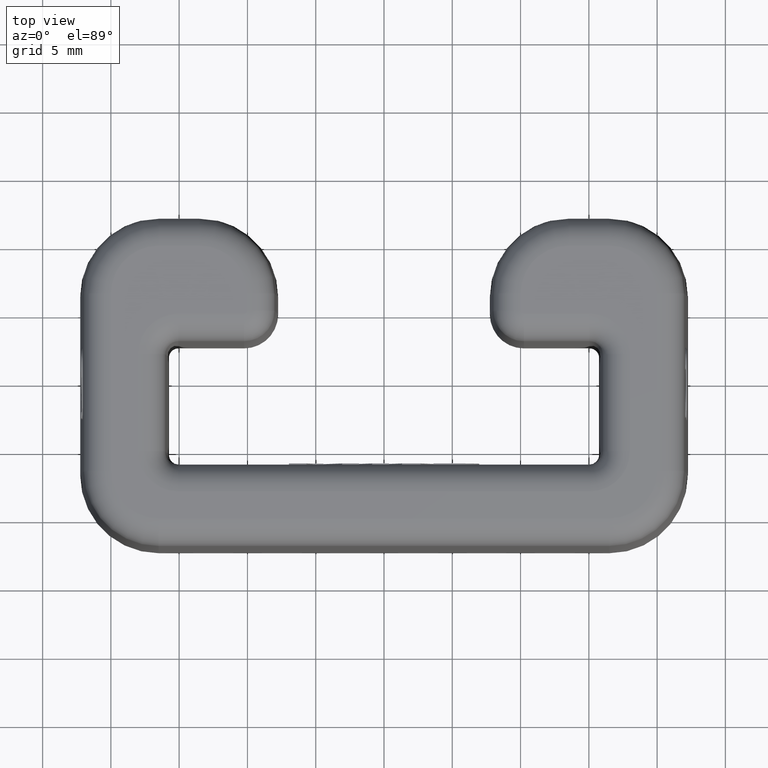
[diagram: clean part render]
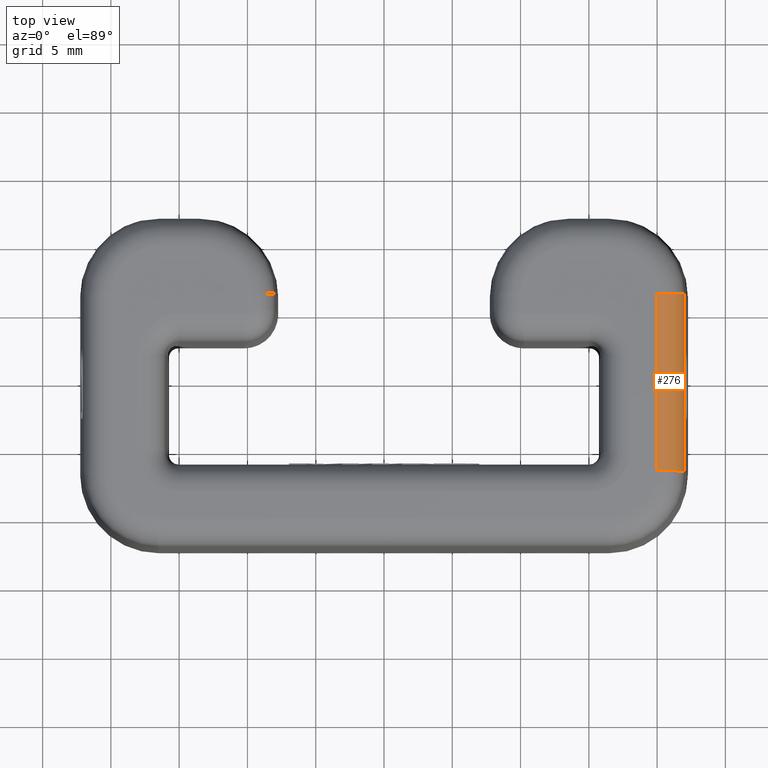
[diagram: same view with one face highlighted and labeled with its STEP entity id]
A machine part, top view. The second image highlights one B-rep face of the part: STEP entity #276.
In plain terms, the highlighted cylindrical surface (edge-blend (fillet) strip) has radius 2 mm, axis along (0, -1, 0).
Its self-contained STEP definition (entity closure, byte-faithful):
#276=ADVANCED_FACE('',(#594),#595,.T.);
#594=FACE_OUTER_BOUND('',#999,.T.);
#595=CYLINDRICAL_SURFACE('',#1000,2.0);
#999=EDGE_LOOP('',(#2306,#2307,#2308,#2309));
#1000=AXIS2_PLACEMENT_3D('',#2310,#2311,#2312);
#2306=ORIENTED_EDGE('',*,*,#3043,.T.);
#2307=ORIENTED_EDGE('',*,*,#2997,.F.);
#2308=ORIENTED_EDGE('',*,*,#3041,.F.);
#2309=ORIENTED_EDGE('',*,*,#2974,.F.);
#2310=CARTESIAN_POINT('',(19.9846054737687,4.95,15.0));
#2311=DIRECTION('',(0.0,-1.0,0.0));
#2312=DIRECTION('',(0.0,0.0,1.0));
#2974=EDGE_CURVE('',#3607,#3609,#3610,.F.);
#2997=EDGE_CURVE('',#3643,#3646,#3647,.F.);
#3041=EDGE_CURVE('',#3609,#3643,#3704,.T.);
#3043=EDGE_CURVE('',#3607,#3646,#3706,.T.);
#3607=VERTEX_POINT('',#5126);
#3609=VERTEX_POINT('',#5128);
#3610=LINE('',#5129,#5130);
#3643=VERTEX_POINT('',#5177);
#3646=VERTEX_POINT('',#5181);
#3647=LINE('',#5182,#5183);
#3704=CIRCLE('',#5261,2.0);
#3706=CIRCLE('',#5263,2.0);
#5126=CARTESIAN_POINT('',(19.9846054737686,3.5,17.0));
#5128=CARTESIAN_POINT('',(19.9846054737687,16.5,17.0));
#5129=CARTESIAN_POINT('',(19.9846054737687,16.5,17.0));
#5130=VECTOR('',#5732,1000.0);
#5177=CARTESIAN_POINT('',(21.9843008640815,16.5,15.0349048128745));
#5181=CARTESIAN_POINT('',(21.9843008640814,3.5,15.0349048128745));
#5182=CARTESIAN_POINT('',(21.9843008640815,3.5,15.0349048128745));
#5183=VECTOR('',#5769,1000.0);
#5261=AXIS2_PLACEMENT_3D('',#5857,#5858,#5859);
#5263=AXIS2_PLACEMENT_3D('',#5863,#5864,#5865);
#5732=DIRECTION('',(0.0,-1.0,0.0));
#5769=DIRECTION('',(0.0,1.0,0.0));
#5857=CARTESIAN_POINT('',(19.9846054737687,16.5,15.0));
#5858=DIRECTION('',(0.0,1.0,0.0));
#5859=DIRECTION('',(0.0,0.0,1.0));
#5863=CARTESIAN_POINT('',(19.9846054737686,3.5,15.0));
#5864=DIRECTION('',(0.0,1.0,0.0));
#5865=DIRECTION('',(0.0,0.0,1.0));